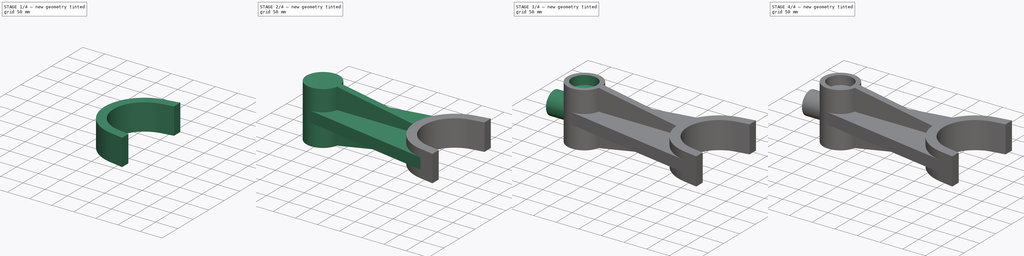
[diagram: build sequence overview — one tinted view per stage of 4, left to right]
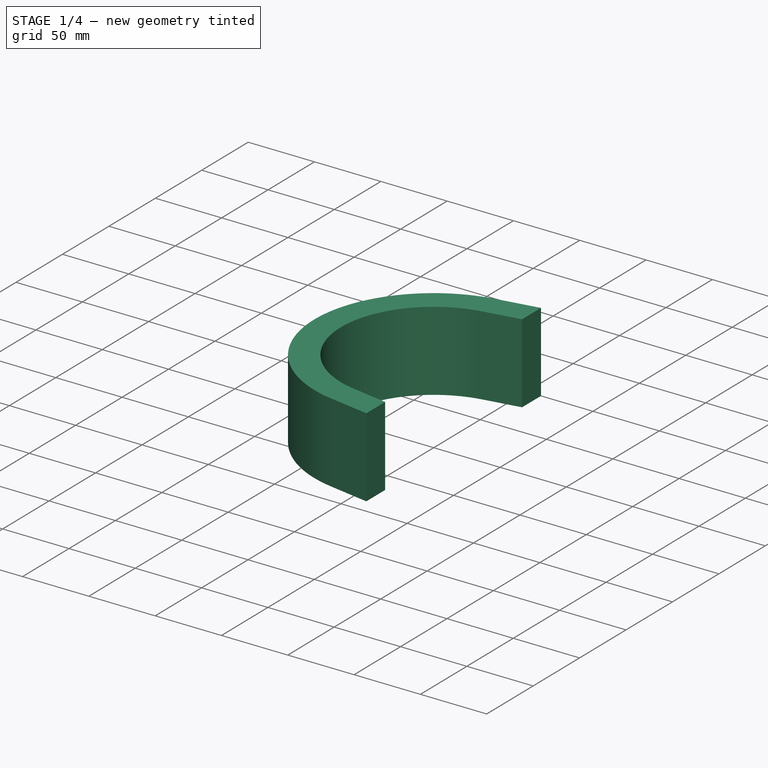
[diagram: stage 1 of 4 — iso view after this stage's code; geometry added in this stage tinted green]
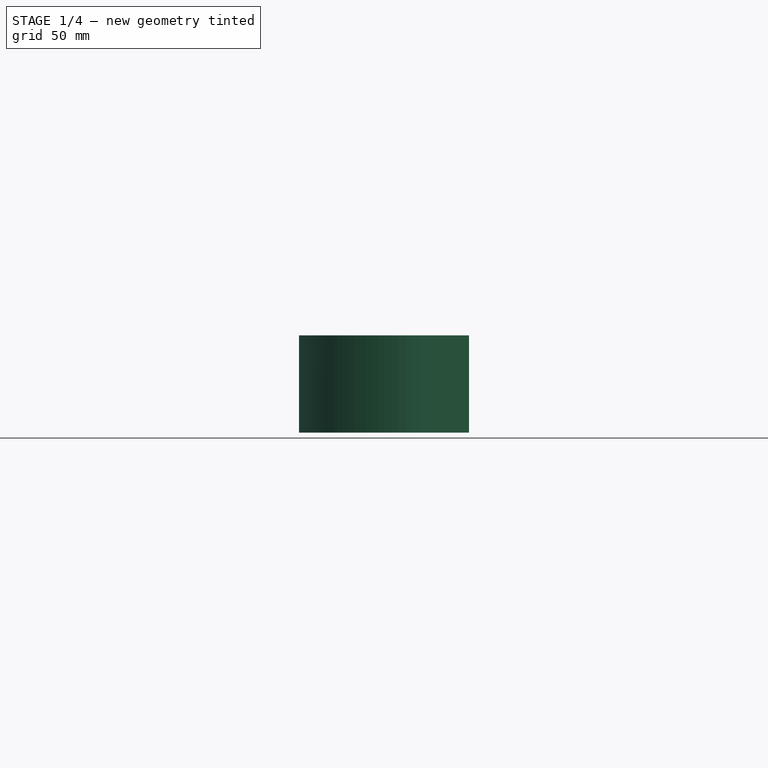
[diagram: stage 1 of 4 — front view after this stage's code; geometry added in this stage tinted green]
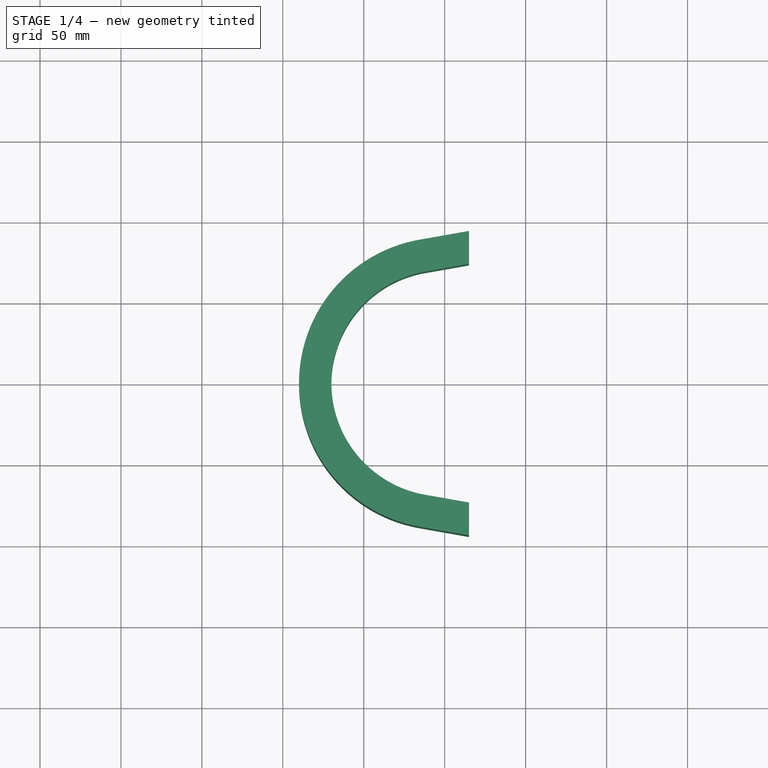
[diagram: stage 1 of 4 — top view after this stage's code; geometry added in this stage tinted green]
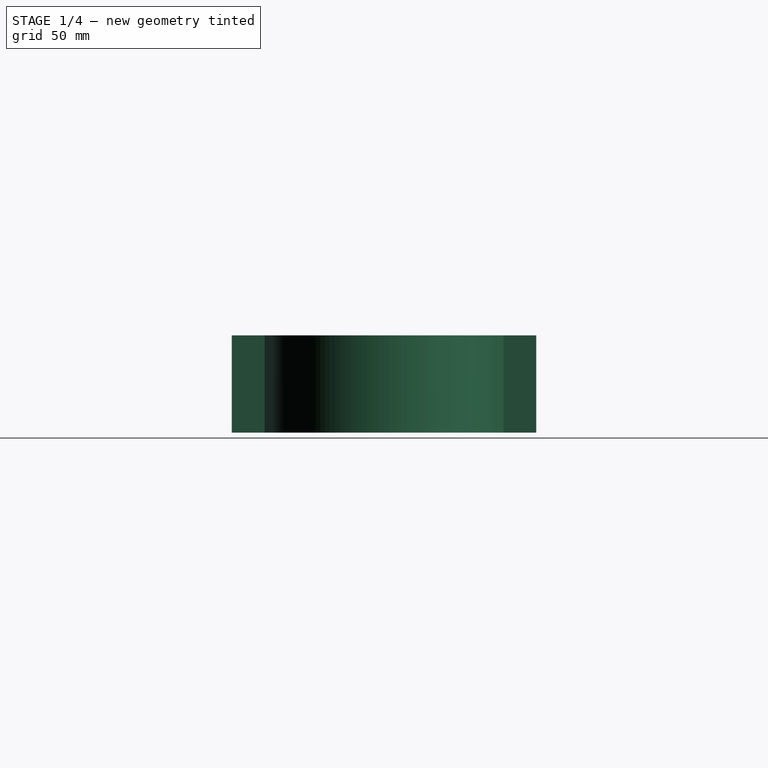
[diagram: stage 1 of 4 — right view after this stage's code; geometry added in this stage tinted green]
FCSTD DOCUMENT  (FreeCAD 1.1R41905 (Git))
Label: 23-T-56-COUNTERSHAFT
License: Creative Commons Attribution-NonCommercial-ShareAlike 4.0
LicenseURL: https://creativecommons.org/licenses/by-nc-sa/4.0/
objects: PartDesign::Pad×6, Sketcher::SketchObject×5, PartDesign::Hole×2, App::Point×1, PartDesign::Thickness×1, PartDesign::Mirrored×1, PartDesign::Body×1, App::TextDocument×1
note: 40 computed .brp shape members not serialized (recipe doc carries the construction recipe); baked Part::Feature solids carry a one-line shape summary decoded from their .brp

FEATURE [App::Point] Origin001  label="Origine"
  Role = Origin
FEATURE [Sketcher::SketchObject] Sketch
  ArcFitTolerance = 1e-06
  AttachmentSupport = -> [Origin]
  ExternalTypes = [0]
  FullyConstrained = false
  MakeInternals = false
  MapMode = 5
  sketch-geometry (6):
    g0: LineSegment StartX=15 StartY=-94.0333 StartZ=0 EndX=-15.6283 EndY=-88.6327 EndZ=0
    g1: ArcOfCircle CenterX=0 CenterY=0 CenterZ=0 NormalX=0 NormalY=0 NormalZ=1 AngleXU=0 Radius=90 StartAngle=1.74533 EndAngle=4.53786
    g2: LineSegment StartX=-15.6283 StartY=88.6327 StartZ=0 EndX=15 EndY=94.0333 EndZ=0
    g3: LineSegment StartX=15 StartY=94.0333 StartZ=0 EndX=15 EndY=-94.0333 EndZ=0
    g4: ArcOfCircle [constr] CenterX=0 CenterY=0 CenterZ=0 NormalX=0 NormalY=0 NormalZ=1 AngleXU=0 Radius=70 StartAngle=1.5708 EndAngle=4.71239
    g5: GeomPoint [constr] X=-70 Y=9.134e-13 Z=0
  constraints (14):
    c: Tangent(g0,g1) = 1.5708
    c: Tangent(g1,g2) = 1.5708
    c: Coincident(g2,g3)
    c: Coincident(g3,g0)
    c: Coincident(g1,g-1)
    c: Radius(g1) = 90
    c: Angle(g0,g2) = 0.349066
    c: Symmetric(g0,g2,g-1)
    c: Radius(g4) = 70
    c: Coincident(g4,g1)
    c: PointOnObject(g4,g-2)
    c: PointOnObject(g4,g-2)
    c: PointOnObject(g5,g4)
    c: DistanceX(g5,g0) = 85
FEATURE [PartDesign::Pad] Pad
  Direction = (0,0,1)
  Length = 60
  Length2 = 10
  Midplane = true
  Profile = -> Sketch
  ReferenceAxis = -> Sketch [N_Axis]
  Refine = true
  Suppressed = false
  Type = 0
FEATURE [PartDesign::Thickness] Thickness
  Base = -> Pad [Face6,Face4,Face5]
  BaseFeature = -> Pad
  Intersection = false
  Join = 0
  Mode = 0
  Refine = true
  Reversed = true
  SupportTransform = false
  Suppressed = false
  Value = 20
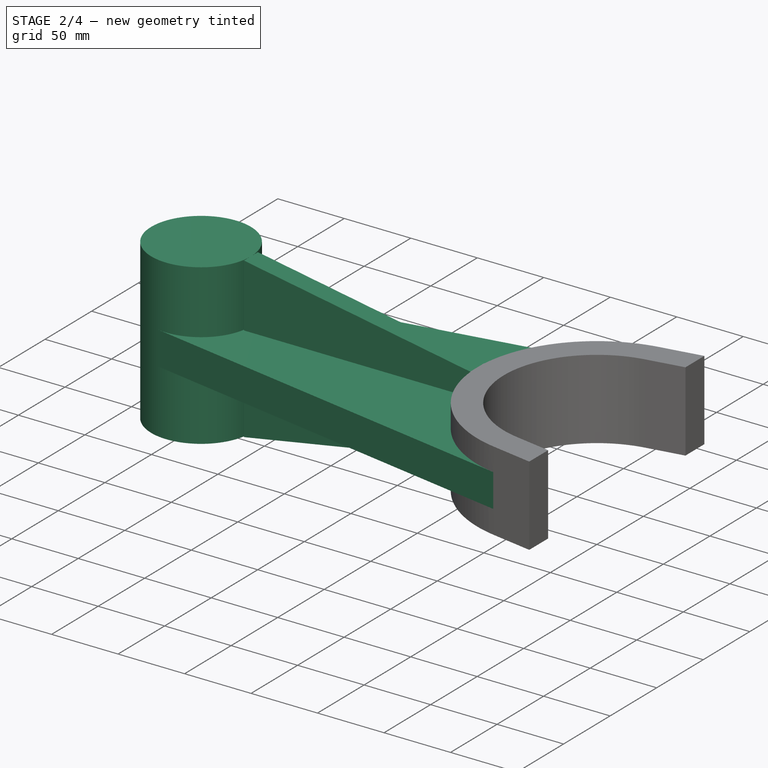
[diagram: stage 2 of 4 — iso view after this stage's code; geometry added in this stage tinted green]
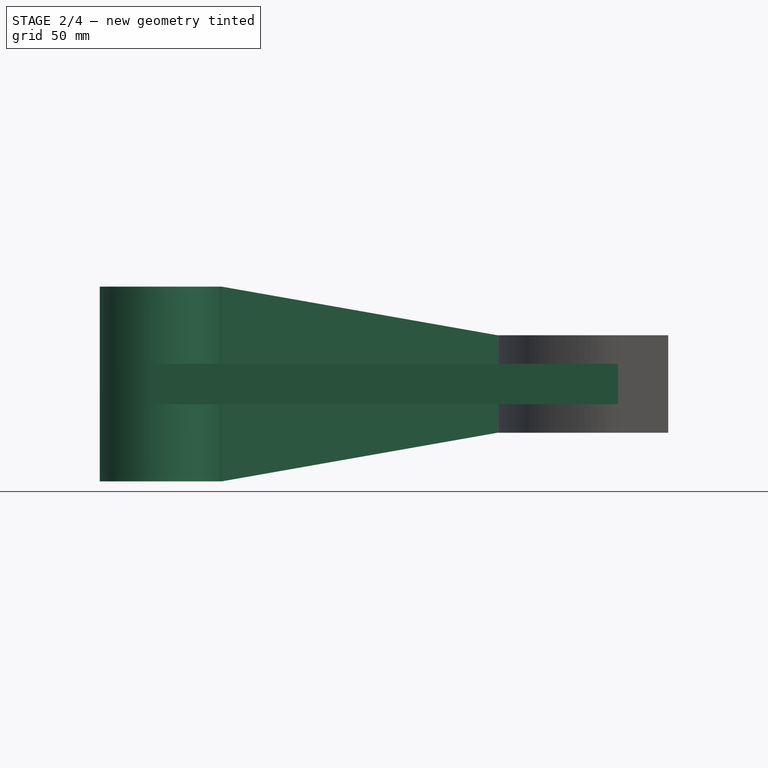
[diagram: stage 2 of 4 — front view after this stage's code; geometry added in this stage tinted green]
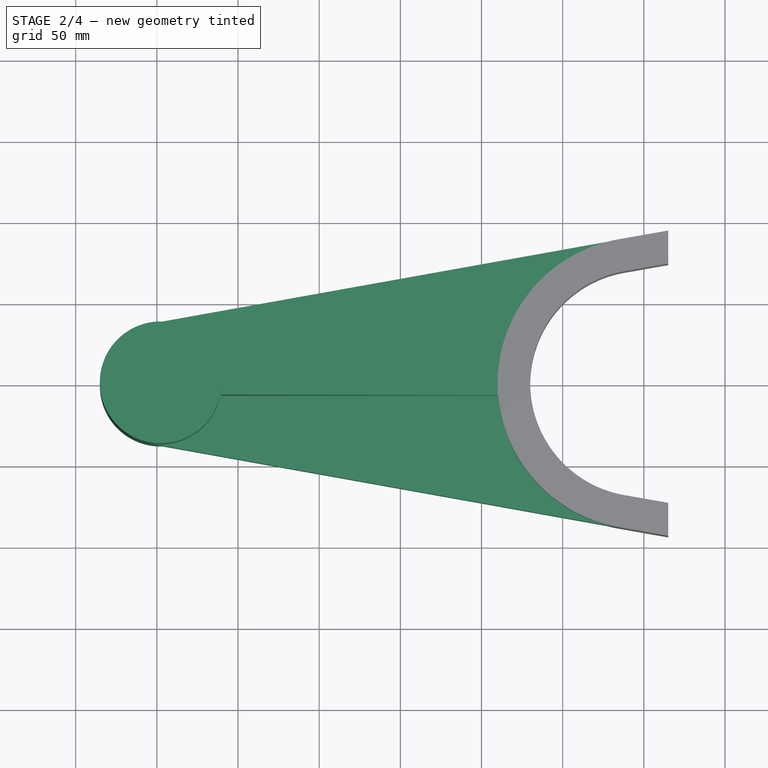
[diagram: stage 2 of 4 — top view after this stage's code; geometry added in this stage tinted green]
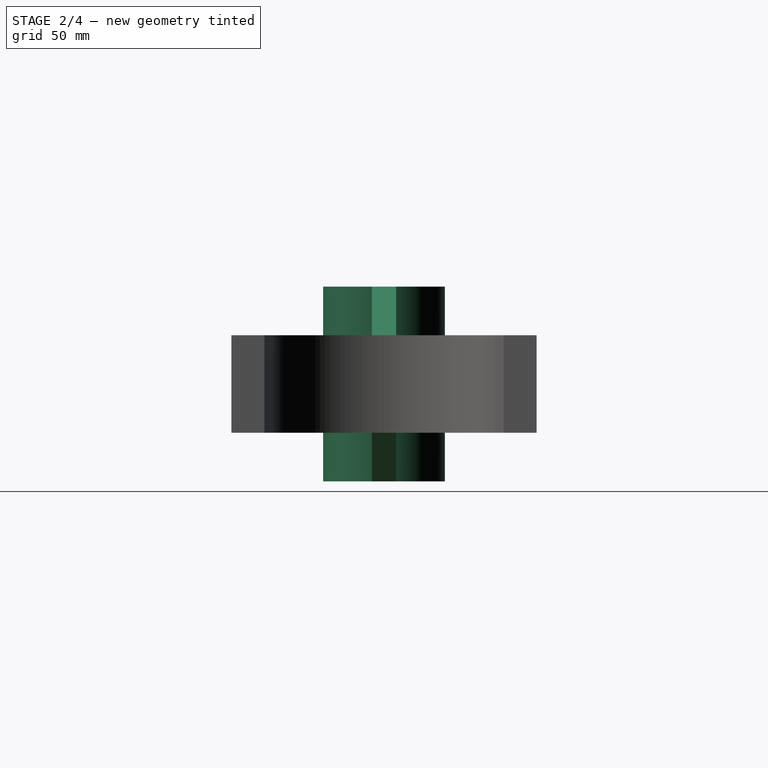
[diagram: stage 2 of 4 — right view after this stage's code; geometry added in this stage tinted green]
FEATURE [Sketcher::SketchObject] Sketch002
  ArcFitTolerance = 1e-06
  AttachmentSupport = -> [Origin]
  ExternalGeometry = -> [Thickness]
  ExternalTypes = [0,0,0]
  FullyConstrained = true
  MakeInternals = false
  MapMode = 5
  Placement = pos=(0,0,0) rot=(1,0,0;1.5708rad)
  sketch-geometry (7):
    g0: LineSegment StartX=-260.138 StartY=60 StartZ=0 EndX=-260.138 EndY=-60 EndZ=0
    g1: LineSegment StartX=-260.138 StartY=60 StartZ=0 EndX=-90 EndY=30 EndZ=0
    g2: LineSegment StartX=-90 StartY=-30 StartZ=0 EndX=-260.138 EndY=-60 EndZ=0
    g3: LineSegment StartX=-90 StartY=-30 StartZ=0 EndX=-80 EndY=-30 EndZ=0
    g4: LineSegment StartX=-80 StartY=-30 StartZ=0 EndX=-80 EndY=30 EndZ=0
    g5: LineSegment StartX=-80 StartY=30 StartZ=0 EndX=-90 EndY=30 EndZ=0
    g6: GeomPoint X=-365 Y=0 Z=0
  constraints (18):
    c: Distance(g0) = 120
    c: Symmetric(g0,g0,g-1)
    c: Coincident(g0,g1)
    c: Coincident(g1,g-3)
    c: Coincident(g-4,g2)
    c: Coincident(g2,g0)
    c: Angle(g1,g2) = 0.349066
    c: Coincident(g3,g4)
    c: Coincident(g4,g5)
    c: Vertical(g4)
    c: Horizontal(g3)
    c: Horizontal(g5)
    c: Coincident(g5,g1)
    c: PointOnObject(g3,g-4)
    c: DistanceX(g3,g3) = 10
    c: Vertical(g1,g3)
    c: PointOnObject(g6,g-1)
    c: DistanceX(g6,g-5) = 380
FEATURE [PartDesign::Pad] Pad001
  BaseFeature = -> Thickness
  Direction = (0,-1,2e-16)
  Length = 15
  Length2 = 10
  Midplane = true
  Profile = -> Sketch002
  ReferenceAxis = -> Sketch002 [N_Axis]
  Refine = true
  Suppressed = false
  Type = 0
FEATURE [Sketcher::SketchObject] Sketch001
  ArcFitTolerance = 1e-06
  AttachmentSupport = -> [Origin]
  ExternalGeometry = -> [Sketch002,Pad001]
  ExternalTypes = [0,0]
  FullyConstrained = true
  MakeInternals = false
  MapMode = 5
  sketch-geometry (5):
    g0: Circle [constr] CenterX=-297.638 CenterY=0 CenterZ=0 NormalX=0 NormalY=0 NormalZ=1 AngleXU=0 Radius=37.5
    g1: LineSegment StartX=-304.253 StartY=36.912 StartZ=0 EndX=-15.875 EndY=88.5889 EndZ=0
    g2: ArcOfCircle CenterX=0 CenterY=0 CenterZ=0 NormalX=0 NormalY=0 NormalZ=1 AngleXU=0 Radius=90 StartAngle=1.74811 EndAngle=4.53507
    g3: LineSegment StartX=-304.253 StartY=-36.912 StartZ=0 EndX=-15.875 EndY=-88.5889 EndZ=0
    g4: ArcOfCircle CenterX=-297.638 CenterY=3.6e-15 CenterZ=0 NormalX=0 NormalY=0 NormalZ=1 AngleXU=0 Radius=37.5 StartAngle=1.74811 EndAngle=4.53507
  constraints (12):
    c: Diameter(g0) = 75
    c: PointOnObject(g0,g-1)
    c: PointOnObject(g-3,g0)
    c: PointOnObject(g1,g-4)
    c: Coincident(g2,g-1)
    c: Tangent(g2,g1) = 1.5708
    c: Tangent(g3,g2) = -1.5708
    c: Tangent(g1,g0) = 1.5708
    c: Tangent(g3,g0) = -1.5708
    c: Coincident(g4,g3)
    c: Coincident(g1,g4)
    c: Vertical(g4,g0)
FEATURE [PartDesign::Pad] Pad002
  BaseFeature = -> Pad001
  Direction = (0,0,1)
  Length = 25
  Length2 = 10
  Midplane = true
  Profile = -> Sketch001
  ReferenceAxis = -> Sketch001 [N_Axis]
  Refine = true
  Suppressed = false
  Type = 0
FEATURE [Sketcher::SketchObject] Sketch003
  ArcFitTolerance = 1e-06
  AttachmentSupport = -> [Origin]
  ExternalGeometry = -> [Pad002]
  ExternalTypes = [0]
  FullyConstrained = true
  MakeInternals = false
  MapMode = 5
  sketch-geometry (1):
    g0: Circle CenterX=-297.638 CenterY=3.6e-15 CenterZ=0 NormalX=0 NormalY=0 NormalZ=1 AngleXU=0 Radius=37.5
  constraints (2):
    c: Coincident(g0,g-3)
    c: PointOnObject(g-3,g0)
FEATURE [PartDesign::Pad] Pad003
  BaseFeature = -> Pad002
  Direction = (0,0,1)
  Length = 120
  Length2 = 10
  Midplane = true
  Profile = -> Sketch003
  ReferenceAxis = -> Sketch003 [N_Axis]
  Refine = true
  Suppressed = false
  Type = 0
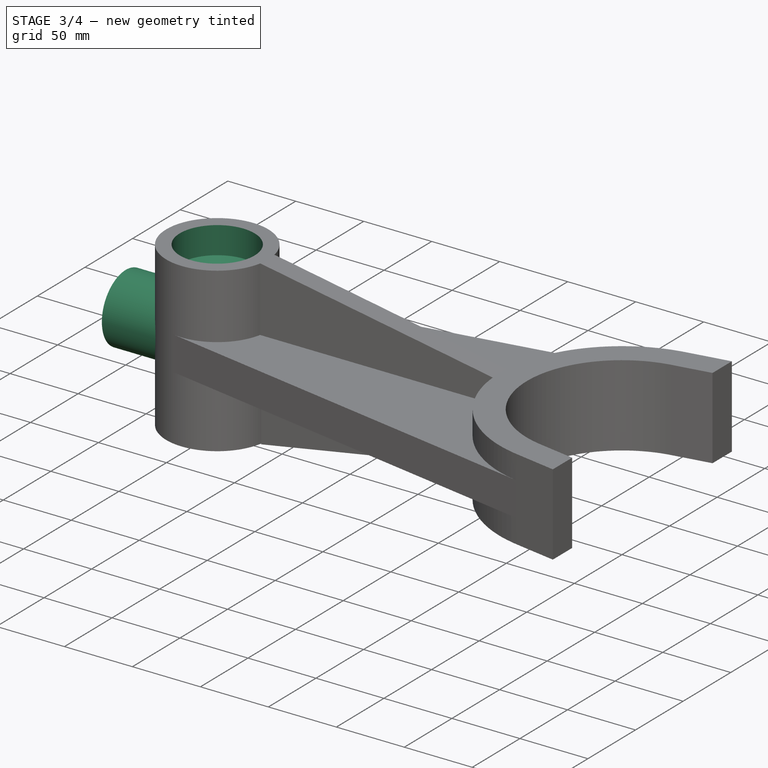
[diagram: stage 3 of 4 — iso view after this stage's code; geometry added in this stage tinted green]
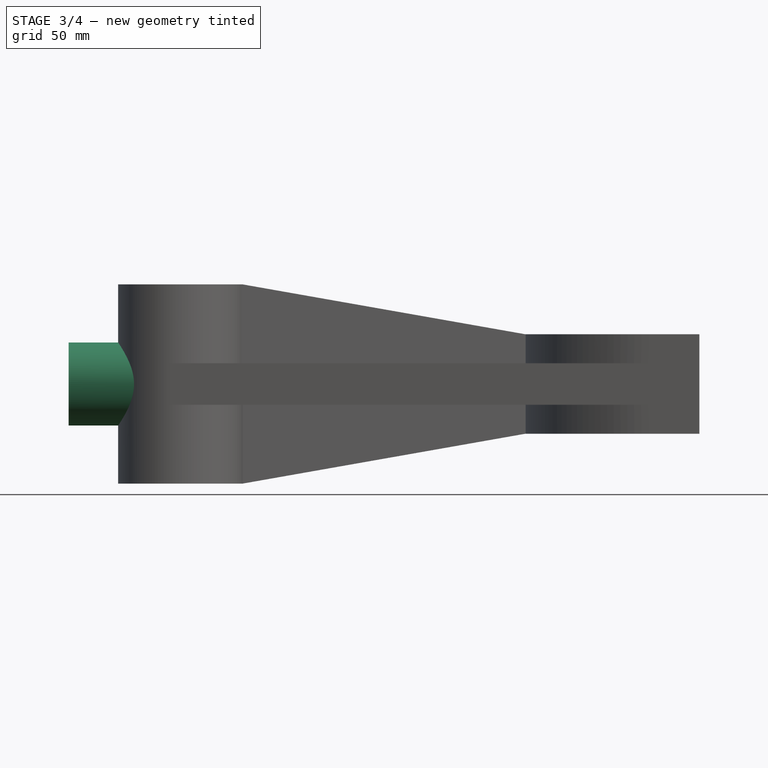
[diagram: stage 3 of 4 — front view after this stage's code; geometry added in this stage tinted green]
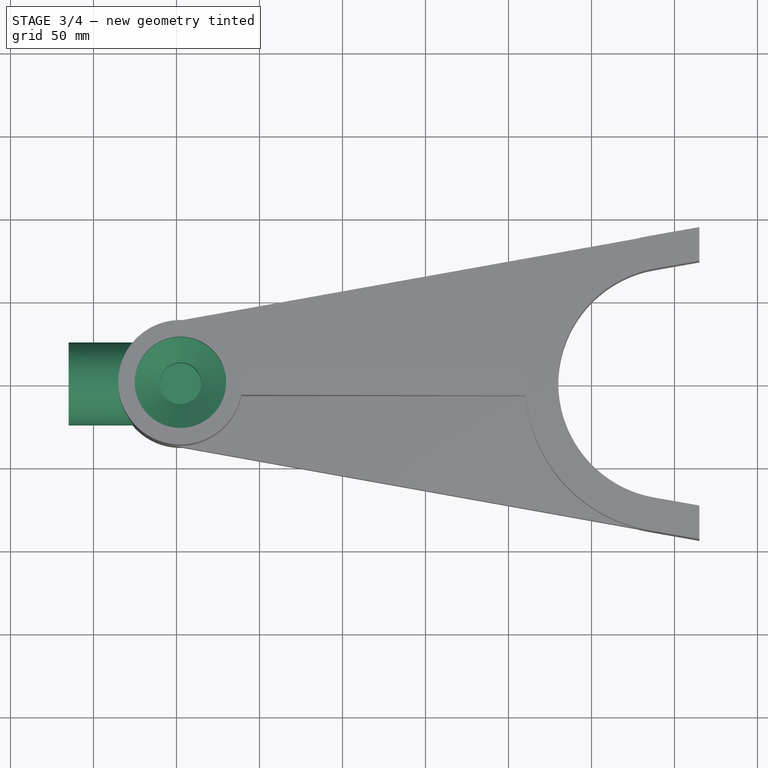
[diagram: stage 3 of 4 — top view after this stage's code; geometry added in this stage tinted green]
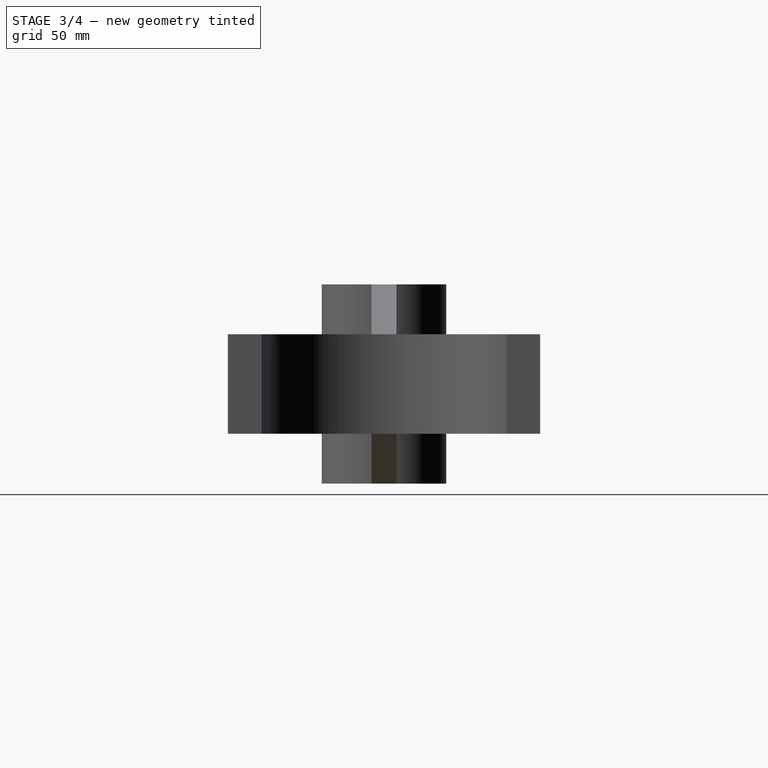
[diagram: stage 3 of 4 — right view after this stage's code; geometry added in this stage tinted green]
FEATURE [PartDesign::Pad] Pad004
  BaseFeature = -> Pad003
  Direction = (-1,0,0)
  Length = 10
  Length2 = 10
  Profile = -> Pad003 [Face25]
  Refine = true
  Suppressed = false
  Type = 0
FEATURE [Sketcher::SketchObject] Sketch004
  ArcFitTolerance = 1e-06
  AttachmentSupport = -> [Origin,Sketch002]
  ExternalTypes = [0]
  FullyConstrained = true
  MakeInternals = false
  MapMode = 7
  Placement = pos=(-365,0,0) rot=(0.57735,-0.57735,-0.57735;2.0944rad)
  sketch-geometry (1):
    g0: Circle CenterX=0 CenterY=0 CenterZ=0 NormalX=0 NormalY=0 NormalZ=1 AngleXU=0 Radius=25
  constraints (2):
    c: Diameter(g0) = 50
    c: Coincident(g0,g-1)
FEATURE [PartDesign::Pad] Pad005
  BaseFeature = -> Pad004
  Direction = (-1,0,0)
  Length = 10
  Length2 = 10
  Profile = -> Sketch004
  ReferenceAxis = -> Sketch004 [N_Axis]
  Refine = true
  Reversed = true
  Suppressed = false
  Type = 2
FEATURE [PartDesign::Hole] Hole
  BaseFeature = -> Pad005
  BaseProfileType = 7
  CustomThreadClearance = 0
  Depth = 60
  DepthType = 0
  Diameter = 25
  DrillForDepth = false
  DrillPoint = 0
  DrillPointAngle = 118
  HoleCutCountersinkAngle = 110
  HoleCutCustomValues = false
  HoleCutDepth = 20
  HoleCutDiameter = 55
  HoleCutType = 3
  ModelThread = false
  Profile = -> Pad005 [Face21]
  Refine = true
  Suppressed = false
  Tapered = false
  TaperedAngle = 90
  ThreadClass = 0
  ThreadDepth = 60
  ThreadDepthType = 0
  ThreadDiameter = 25
  ThreadDirection = 0
  ThreadFit = 0
  ThreadSize = 0
  ThreadType = 0
  Threaded = false
  UseCustomThreadClearance = false
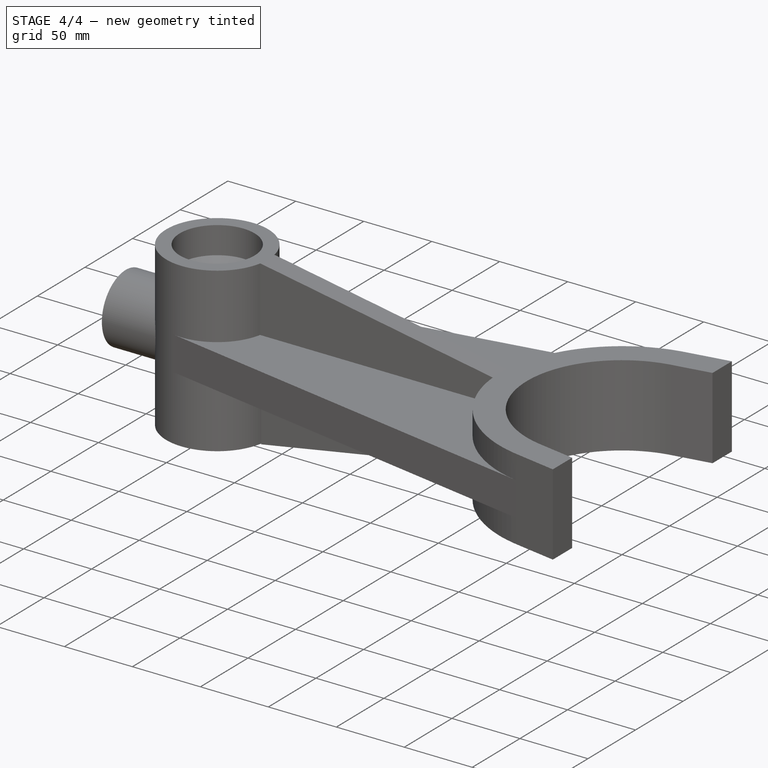
[diagram: stage 4 of 4 — iso view after this stage's code; geometry added in this stage tinted green]
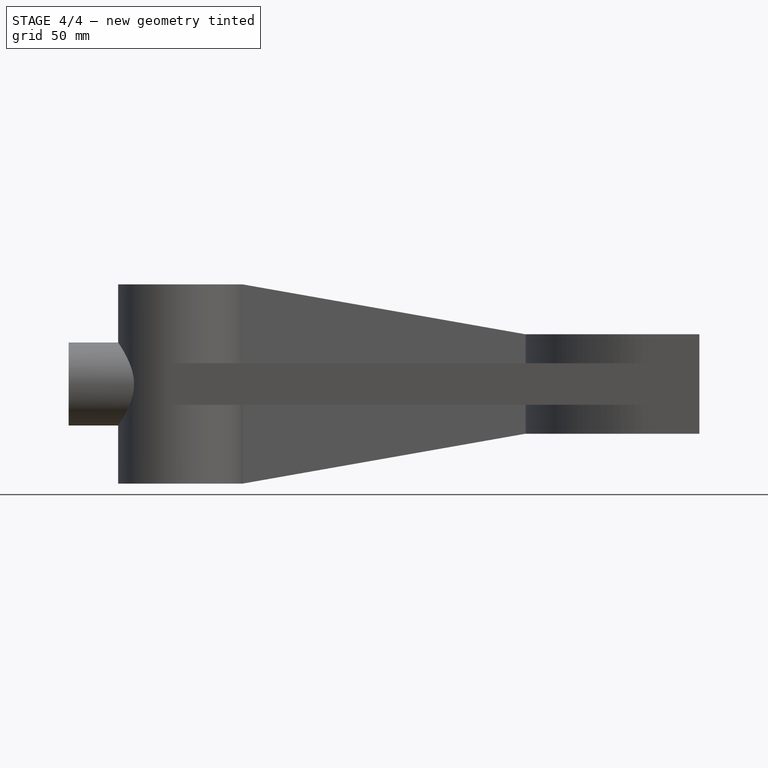
[diagram: stage 4 of 4 — front view after this stage's code; geometry added in this stage tinted green]
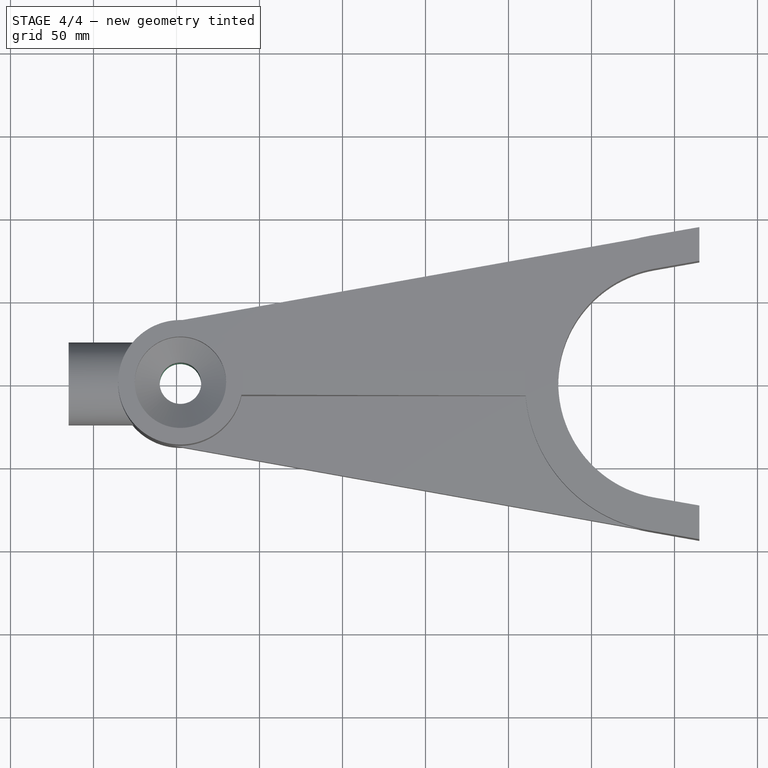
[diagram: stage 4 of 4 — top view after this stage's code; geometry added in this stage tinted green]
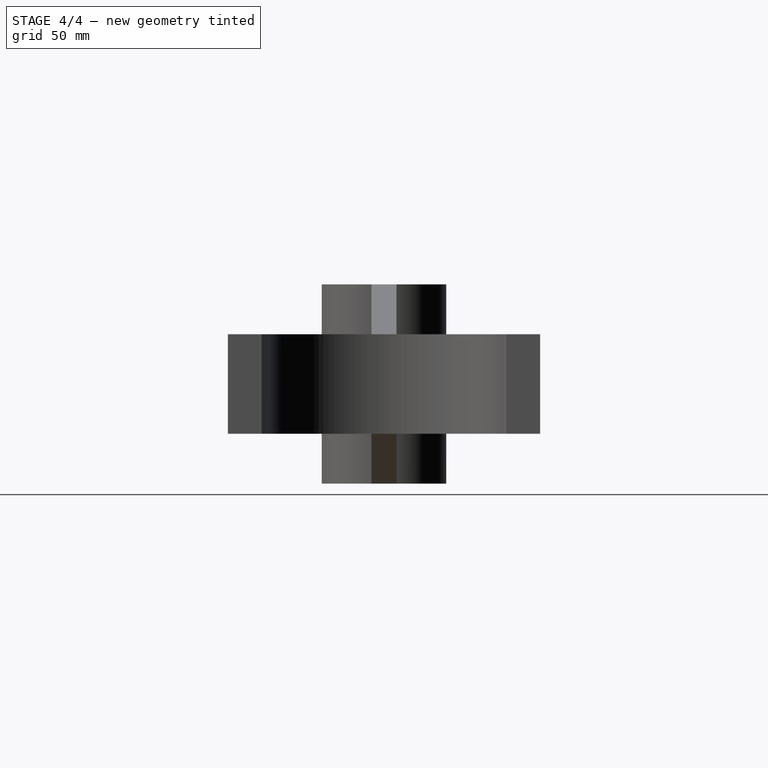
[diagram: stage 4 of 4 — right view after this stage's code; geometry added in this stage tinted green]
FEATURE [PartDesign::Mirrored] Mirrored
  BaseFeature = -> Hole
  MirrorPlane = -> XY_Plane
  Originals = -> [Hole]
  Refine = true
  Suppressed = false
  TransformMode = 0
FEATURE [PartDesign::Hole] Hole001
  BaseFeature = -> Mirrored
  BaseProfileType = 7
  CustomThreadClearance = 0
  Depth = 65
  DepthType = 0
  Diameter = 20
  DrillForDepth = false
  DrillPoint = 0
  DrillPointAngle = 118
  HoleCutCountersinkAngle = 90
  HoleCutCustomValues = false
  HoleCutDepth = 0
  HoleCutDiameter = 0
  HoleCutType = 0
  ModelThread = false
  Profile = -> Mirrored [Face31]
  Refine = true
  Suppressed = false
  Tapered = false
  TaperedAngle = 90
  ThreadClass = 0
  ThreadDepth = 65
  ThreadDepthType = 0
  ThreadDiameter = 20
  ThreadDirection = 0
  ThreadFit = 0
  ThreadSize = 0
  ThreadType = 0
  Threaded = false
  UseCustomThreadClearance = false
FEATURE [PartDesign::Body] Body
  AllowCompound = false
  Group = -> [Sketch,Pad,Thickness,Sketch002,Pad001,Sketch001,Pad002,Sketch003,Pad003,Pad004,Sketch004,Pad005,Hole,Mirrored,Hole001]
  Origin = -> Origin
  Tip = -> Hole001
FEATURE [App::TextDocument] Text_document  label="Text document"
  Text = https://www.youtube.com/watch?v=Rixwdm61EfQ\n\n1060 ALLOY\n2700 kg/m3
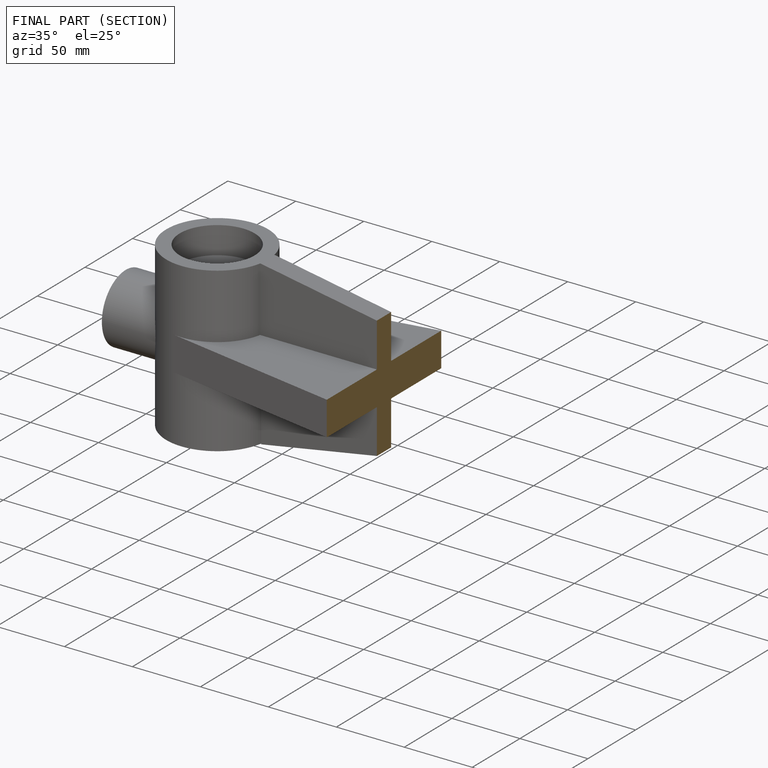
[diagram: finished part — half-section view (interior)]
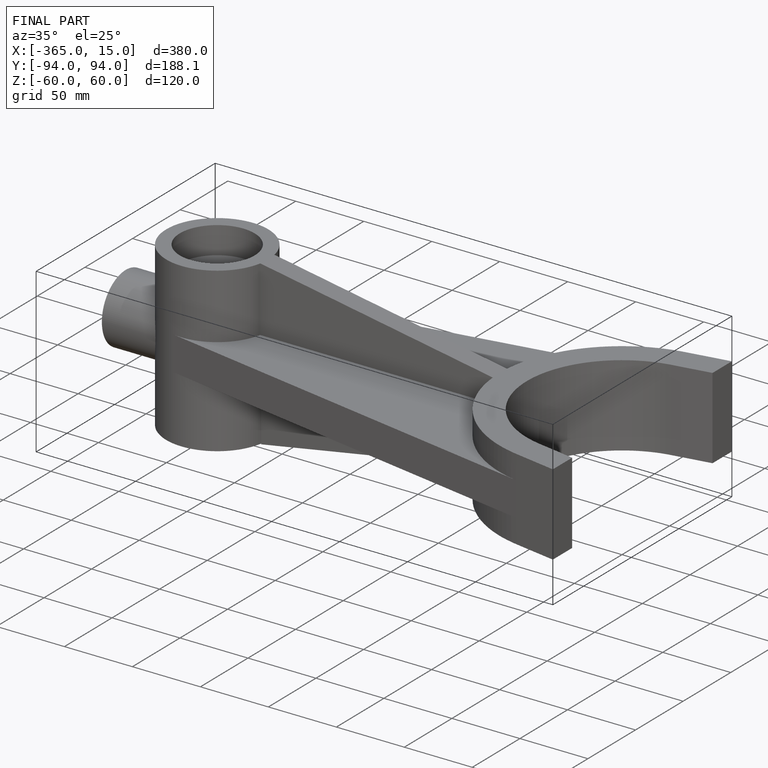
[diagram: finished part — iso view with bounding-box wireframe]
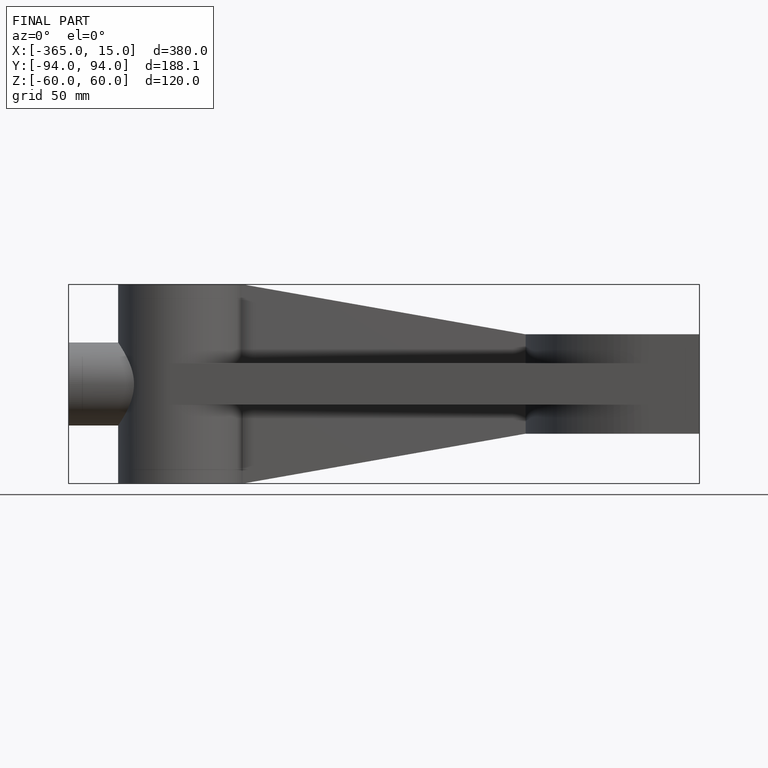
[diagram: finished part — front view with bounding-box wireframe]
